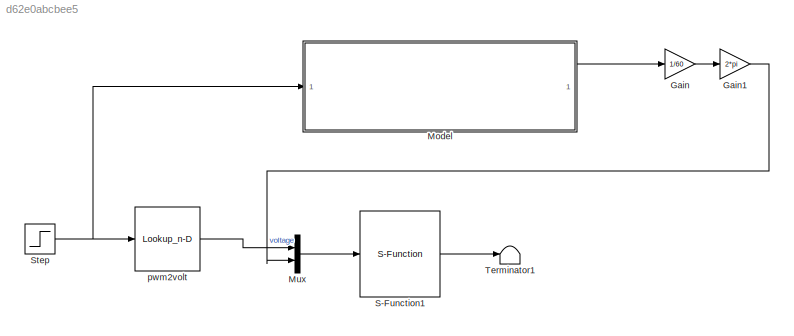
MODEL slx_d62e0abcbee5
KIND model
CONFIG AbsTol = auto
CONFIG EnableMultiTasking = off
CONFIG FixedStep = Ts
CONFIG MaxStep = auto
CONFIG MinStep = auto
CONFIG RelTol = 1e-3
CONFIG SampleTimeConstraint = Unconstrained
CONFIG SolverName = FixedStepAuto
CONFIG StartTime = 0.0
CONFIG StopTime = 5
BLOCK [Gain] Gain
  Gain = 1/60
BLOCK [Gain] Gain1
  Gain = 2*pi
BLOCK [ModelReference] Model
  ModelNameDialog = PhysicalModel.slx
  ModelReferenceVersion = 1.29
BLOCK [Mux] Mux
  DisplayOption = bar
  Inputs = 2
BLOCK [S-Function] S-Function1
  EnableBusSupport = off
  FunctionName = EKF_J_D
  SFcnIsStateOwnerBlock = off
  SFunctionDeploymentMode = off
BLOCK [Step] Step
  After = 155
  SampleTime = Ts
BLOCK [Terminator] Terminator1
BLOCK [Lookup_n-D] pwm2volt
  BreakpointsForDimension1 = [0 5 10 15 20 25 30 35 40 45 50 55 60 65 70 75 80 85 90 95 100 105 110 115 120 125 130 135 140 145 150 155 160 165 170 175 180 185 190 195 200 205 210 215 220 225 230 235 240 245 250 255]
  InputPortMap = u0
  InternalRulePriority = Speed
  NumberOfTableDimensions = 1
  RndMeth = Simplest
  Table = [0;0;0;0;0;0;0;0;2.5;3.08;3.77;4.54;5.08;5.55;6.05;6.5;6.97;7.23;7.51;7.72;7.9;8.09;8.28;8.4;8.56;8.65;8.87;9.07;9.27;9.33;9.45;9.51;9.59;9.66;9.74;9.82;9.89;9.91;9.96;10.04;10.08;10.11;10.14;10.2;10.26;10.31;10.37;10.43;10.47;10.47;10.52;10.74]
LINE Gain1:1 -> Mux:2
LINE Gain:1 -> Gain1:1
LINE Model:1 -> Gain:1
LINE Mux:1 -> S-Function1:1
LINE S-Function1:1 -> Terminator1:1
NET Step:1 -> Model:1, pwm2volt:1
LINE pwm2volt:1 -> Mux:1
note: NET lines group one-source signal fan-out (src -> all destinations, sorted); 1:1 wires keep LINE
